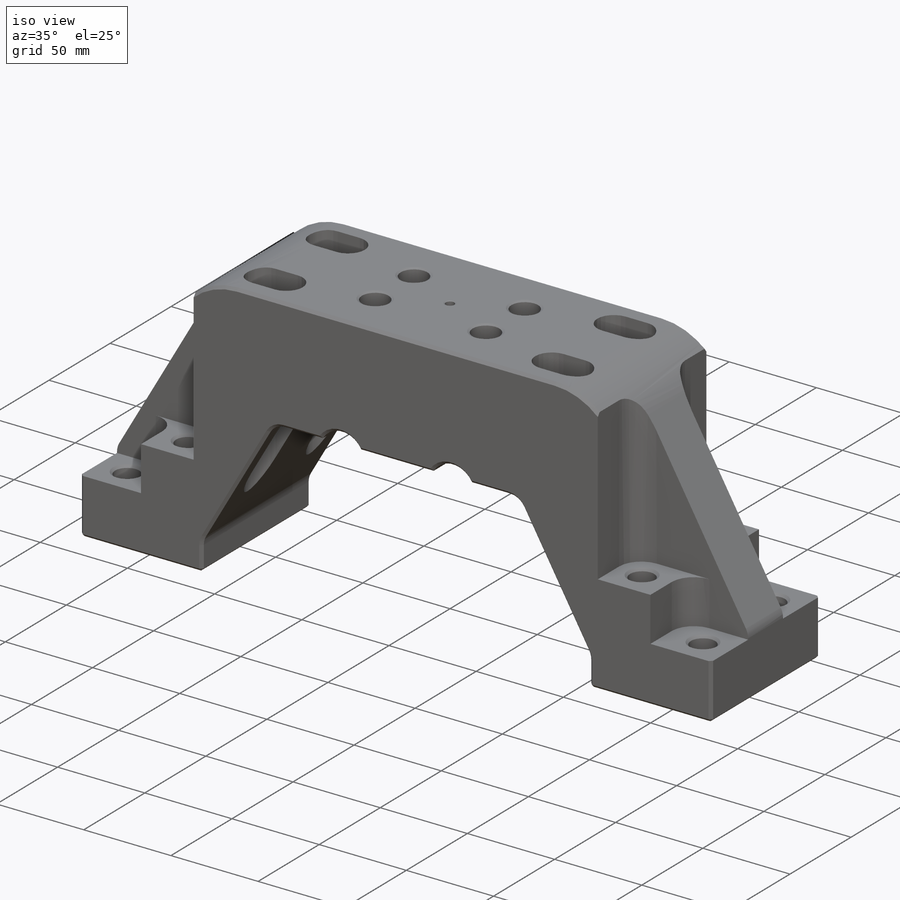
[diagram: iso view]
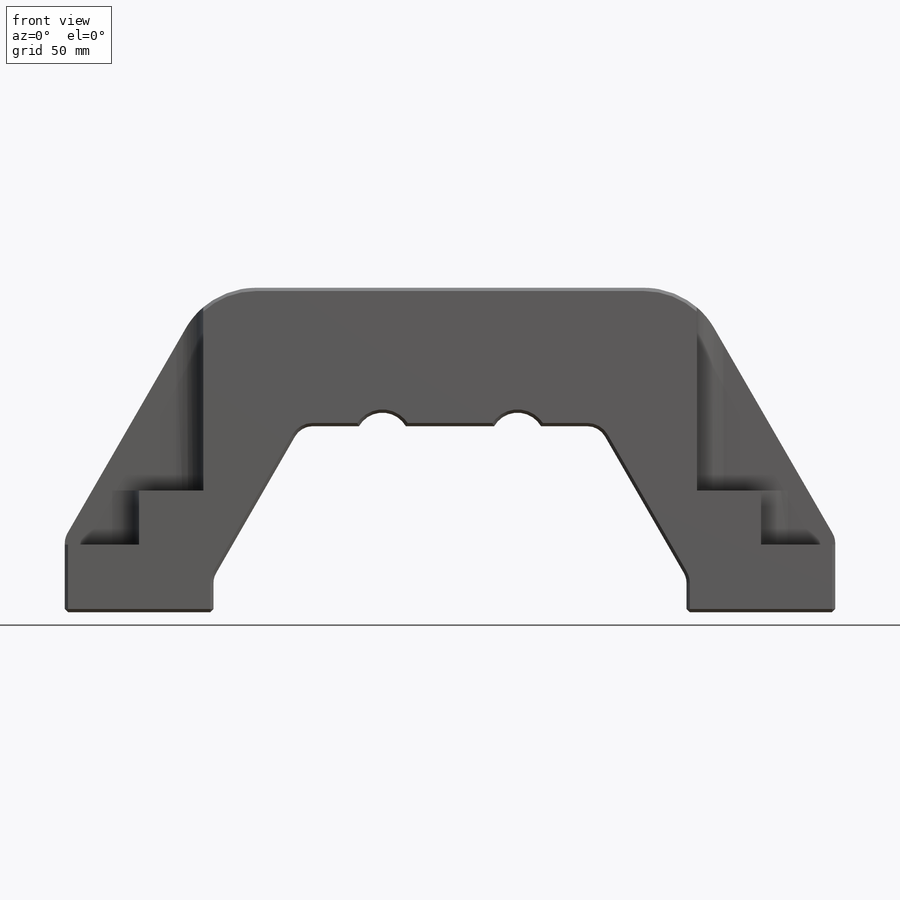
[diagram: front view]
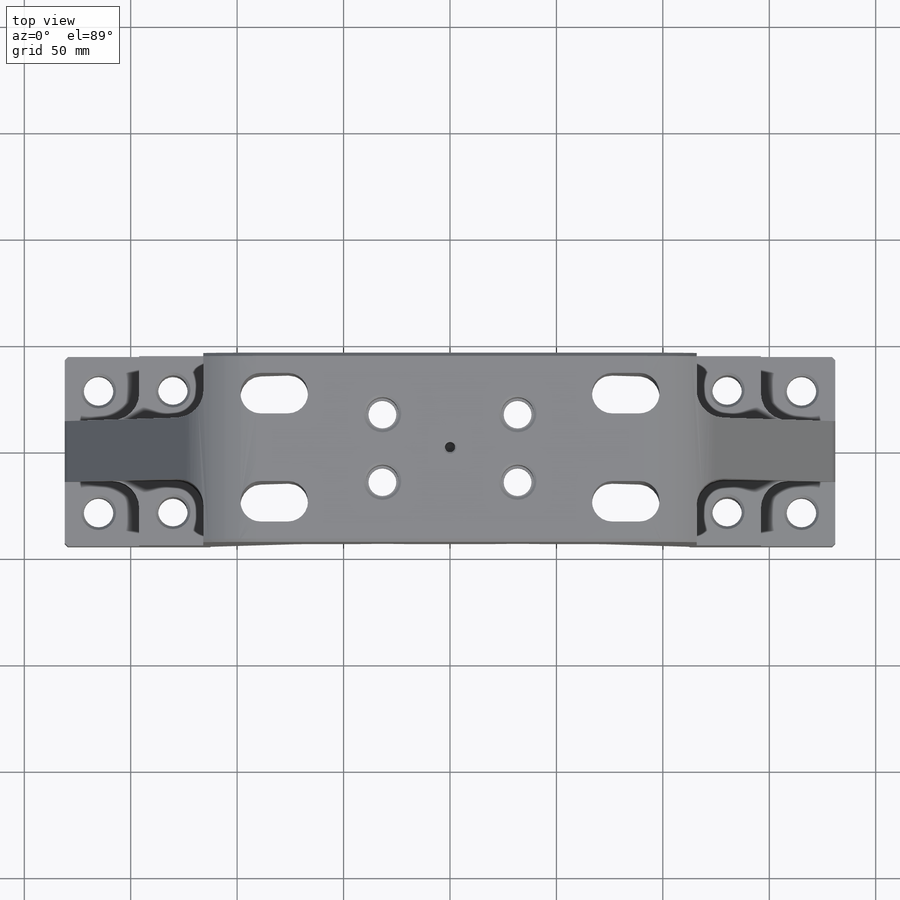
[diagram: top view]
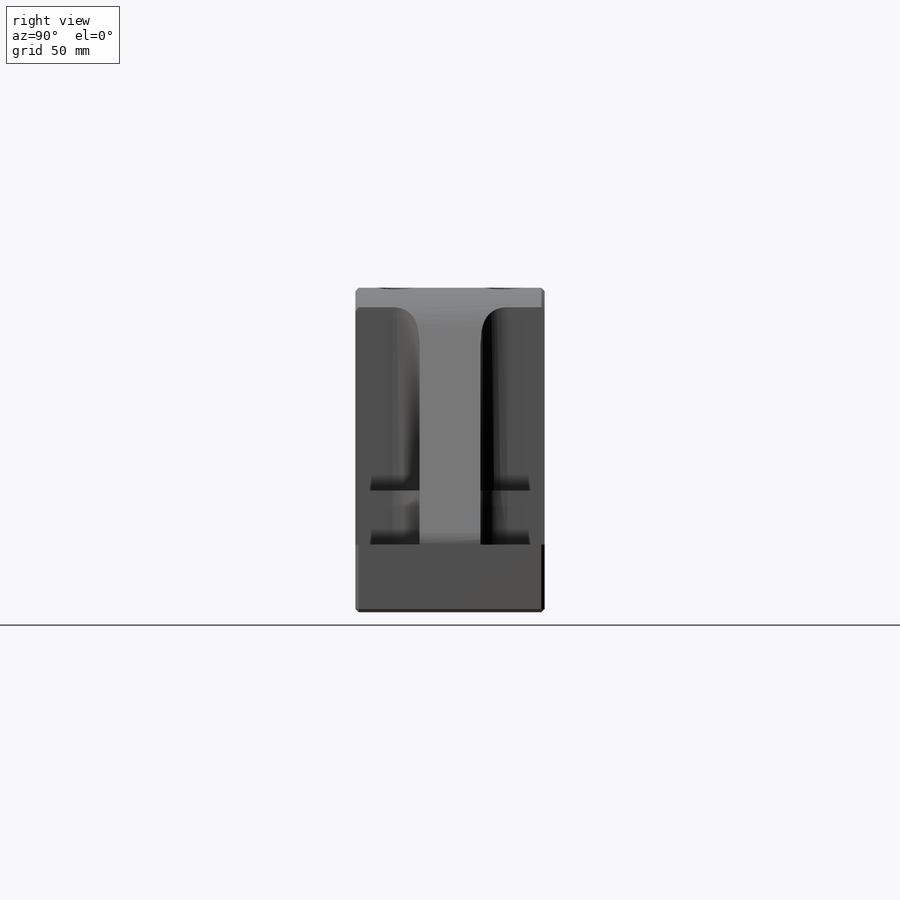
[diagram: right view]
SOLIDWORKS PART (.sldprt)
format: sldprt  version: not decoded by parser v0  size: 756,736 bytes
history: native  units: mm
features: sketch x14, cut_extrude x5, fillet x4, hole x4, material x1, extrude x1, chamfer x1 + 1 further entry (+13 scaffold rows collapsed)
feature tree (44):
  scaffold x13  (default folders/planes/origin — collapsed)
  material  "6061-T6 AL"
  "Origin"  ID=-1
  sketch  "Sketch1"  dims[c1.D1=361.95mm c1.D2=34.925mm c1.D3=69.85mm c1.D4=152.4mm c1.D5=~115.20296mm c2.D5=60.0deg c2.D6=87.376mm c2.D7=69.85mm]
  extrude  "Extrude1"  Depth=88.9mm
  fillet  "Fillet1"  Radius=38.1mm
  fillet  "Fillet2"  Radius=9.525mm
  fillet  "Fillet5"  Radius=9.525mm
  sketch  "Sketch2"  dims[D1=12.7mm D2=63.5mm D3=120.65mm]
  cut_extrude  "Extrude2"  Depth=25.4mm
  fillet  "Fillet3"  Radius=3.175mm
  sketch  "Sketch3"  dims[D1=12.7mm D2=28.575mm D3=65.0875mm]
  cut_extrude  "Extrude3"  Depth=57.15mm
  sketch  "Sketch4"  dims[D1=34.925mm D2=30.1625mm D3=~2.38125mm]
  cut_extrude  "Extrude4"  Depth=31.75mm
  hole  "1/2 Clearance Hole1"  Diameter=13.89126mm Depth=57.15mm
  sketch  "Sketch6"  dims[D1=260.35mm D2=57.15mm]
  sketch  "Sketch5"  dims[hole-wizard template sketch: 47 standard entries collapsed; hole parameters kept: c15.Thru Hole Depth=57.15mm c15.Near C'Sink Dia.=16.51mm c15.D4=~3.666174mm c15.Near C'Sink Angle=90.0deg c15.Far C'Sink Dia.=16.51mm c15.D6=~9.919017mm c15.Far C'Sink Angle=90.0deg]
  hole  "1/2 Clearance Hole2"  Diameter=13.89126mm Depth=31.75mm
  sketch  "Sketch8"  dims[D1=330.2mm]
  sketch  "Sketch7"  dims[hole-wizard template sketch: 47 standard entries collapsed; hole parameters kept: c15.Thru Hole Depth=31.75mm c15.Near C'Sink Dia.=16.51mm c15.D4=~3.666174mm c15.Near C'Sink Angle=90.0deg c15.Far C'Sink Dia.=16.51mm c15.D6=~9.919017mm c15.Far C'Sink Angle=90.0deg]
  hole  "Tapped Hole for 1/2-13 Helicoil1"  Diameter=13.09624mm Depth=39.624mm
  sketch  "Sketch10"  dims[D1=31.75mm D2=63.5mm]
  sketch  "Sketch9"  dims[hole-wizard template sketch: 41 standard entries collapsed; hole parameters kept: c12.Thru Tap Drill Dia.=~13.09624mm c12.Thru Tap Drill Depth=39.624mm c12.Thread Major Dia.=~15.34668mm c12.Thread Depth=29.972mm c12.Near C'Sink Dia.=17.78mm c12.D6=~4.399409mm c12.Near C'Sink Angle=120.0deg]
  sketch  "Sketch11"  dims[D1=50.8mm D2=165.1mm D3=12.7mm D4=19.05mm]
  cut_extrude  "Extrude5"  [1 undecoded]
  sketch  "Sketch12"  dims[D2=25.4mm D1=63.5mm D3=6.35mm]
  cut_extrude  "Extrude6"  [1 undecoded]
  chamfer  "Chamfer1"  Distance=1.524mm Angle=45deg
  hole  "#10-32 Tapped Hole1"  Diameter=4.0386mm Depth=19.05mm
  sketch  "Sketch20"
  sketch  "Sketch19"  dims[hole-wizard template sketch: 26 standard entries collapsed; hole parameters kept: c8.Tap Drill Dia.=4.0386mm c8.Tap Drill Depth=19.05mm c8.Thread Major Dia.=4.826mm c8.Thread Depth=11.43mm c8.Near C'Sink Dia.=6.096mm c8.D6=~4.399409mm c8.Near C'Sink Angle=120.0deg c8.D7=~14.816244mm c8.Drill Angle=118.0deg]
decode coverage: 26 of 29 modeling features carry decoded parameters; 1 rows unclassified (native names shown)
note: ~ marks probable driven/reference dimensions
note: 2 parameter values undecoded
summary: Diameter pulled from absorbed wizard sketch
note: suppression state not decoded; provenance and decode notes live in map.json
